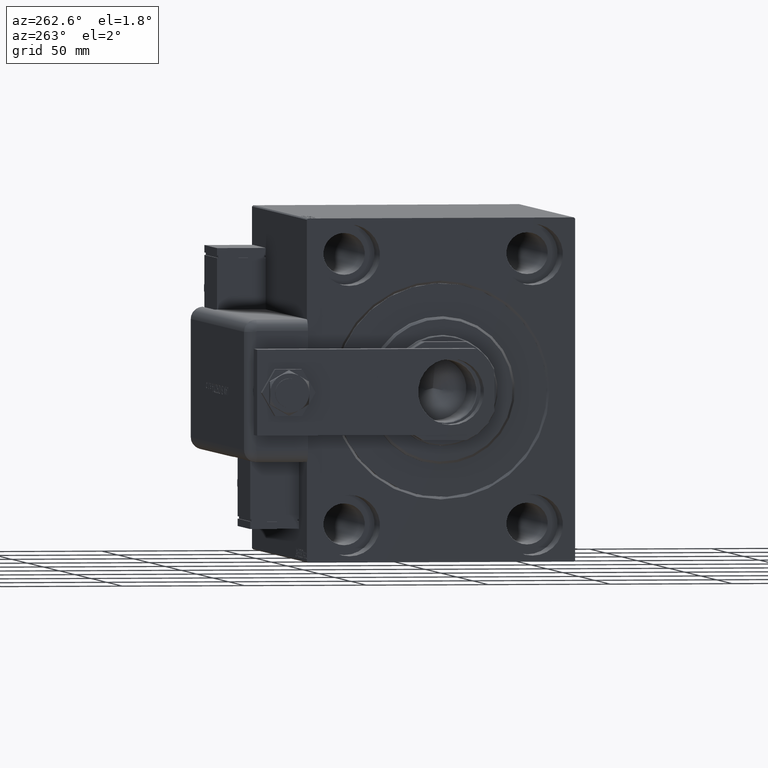
[diagram: clean part render]
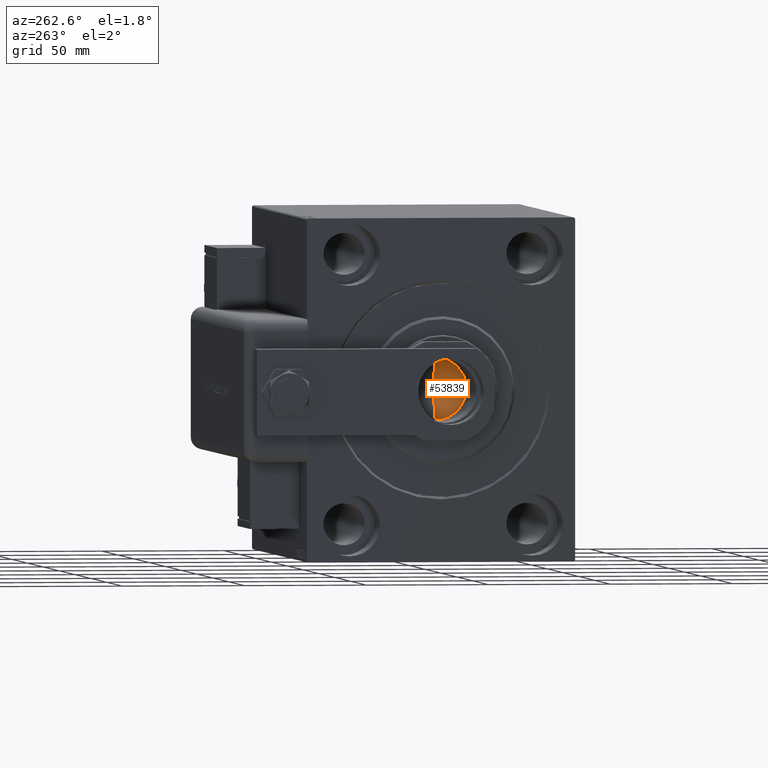
[diagram: same view with one face highlighted and labeled with its STEP entity id]
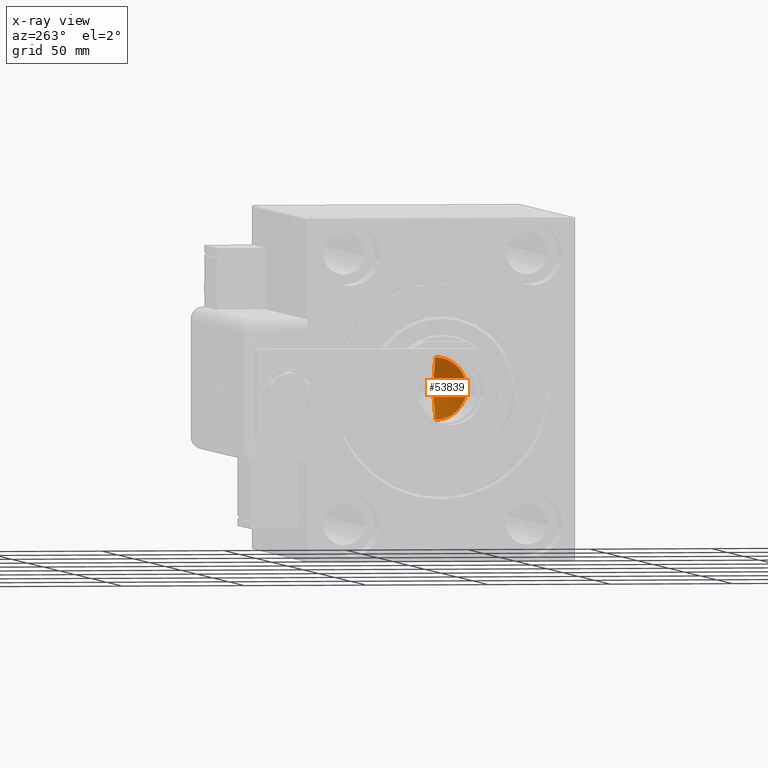
[diagram: x-ray of the same camera — body ghosted, the highlighted face saturated]
A machine part, auxiliary view. The second image highlights one B-rep face of the part: STEP entity #53839.
The next image is the same camera in x-ray: the body ghosted, the highlighted face saturated — about 2% of this face is hidden behind the body in this view.
In plain terms, the highlighted conical surface has half-angle 59 deg.
Its self-contained STEP definition (entity closure, byte-faithful):
#838 = CARTESIAN_POINT ( 'NONE',  ( 12.74999999999999467, 0.000000000000000000, 134.0000000000000000 ) ) ;
#971 = CARTESIAN_POINT ( 'NONE',  ( 0.000000000000000000, 0.000000000000000000, 134.0000000000000000 ) ) ;
#3710 = CARTESIAN_POINT ( 'NONE',  ( -12.74999999999999467, 1.561424668912874519E-15, 134.0000000000000000 ) ) ;
#4003 = VECTOR ( 'NONE', #25046, 1000.000000000000000 ) ;
#6294 = VECTOR ( 'NONE', #46018, 1000.000000000000000 ) ;
#7706 = ORIENTED_EDGE ( 'NONE', *, *, #56598, .F. ) ;
#8066 = CIRCLE ( 'NONE', #29294, 12.74999999999999467 ) ;
#13284 = VERTEX_POINT ( 'NONE', #17064 ) ;
#15187 = FACE_OUTER_BOUND ( 'NONE', #29320, .T. ) ;
#15479 = DIRECTION ( 'NONE',  ( 1.000000000000000000, 0.000000000000000000, 0.000000000000000000 ) ) ;
#15867 = VERTEX_POINT ( 'NONE', #838 ) ;
#16488 = CARTESIAN_POINT ( 'NONE',  ( 0.000000000000000000, 0.000000000000000000, 134.0000000000000000 ) ) ;
#17064 = CARTESIAN_POINT ( 'NONE',  ( -1.026246296720136938E-14, 0.000000000000000000, 126.3390271073986071 ) ) ;
#17089 = DIRECTION ( 'NONE',  ( -0.000000000000000000, -0.000000000000000000, 1.000000000000000000 ) ) ;
#19140 = LINE ( 'NONE', #51473, #6294 ) ;
#22433 = ORIENTED_EDGE ( 'NONE', *, *, #30837, .T. ) ;
#24132 = ORIENTED_EDGE ( 'NONE', *, *, #34601, .T. ) ;
#24216 = CONICAL_SURFACE ( 'NONE', #52225, 12.74999999999999467, 1.029744258676653645 ) ;
#25046 = DIRECTION ( 'NONE',  ( 0.8571673007021118895, 0.000000000000000000, 0.5150380749100549327 ) ) ;
#28173 = DIRECTION ( 'NONE',  ( -0.000000000000000000, -0.000000000000000000, 1.000000000000000000 ) ) ;
#29294 = AXIS2_PLACEMENT_3D ( 'NONE', #16488, #17089, #49725 ) ;
#29320 = EDGE_LOOP ( 'NONE', ( #7706, #24132, #22433 ) ) ;
#30837 = EDGE_CURVE ( 'NONE', #32015, #15867, #8066, .T. ) ;
#32015 = VERTEX_POINT ( 'NONE', #3710 ) ;
#34601 = EDGE_CURVE ( 'NONE', #13284, #32015, #19140, .T. ) ;
#34696 = LINE ( 'NONE', #42566, #4003 ) ;
#42566 = CARTESIAN_POINT ( 'NONE',  ( 12.74999999999999467, 0.000000000000000000, 134.0000000000000000 ) ) ;
#46018 = DIRECTION ( 'NONE',  ( -0.8571673007021118895, 1.049727191138618079E-16, 0.5150380749100549327 ) ) ;
#49725 = DIRECTION ( 'NONE',  ( 1.000000000000000000, 0.000000000000000000, 0.000000000000000000 ) ) ;
#51473 = CARTESIAN_POINT ( 'NONE',  ( -12.74999999999999467, 1.561424668912874519E-15, 134.0000000000000000 ) ) ;
#52225 = AXIS2_PLACEMENT_3D ( 'NONE', #971, #28173, #15479 ) ;
#53839 = ADVANCED_FACE ( 'NONE', ( #15187 ), #24216, .F. ) ;
#56598 = EDGE_CURVE ( 'NONE', #13284, #15867, #34696, .T. ) ;